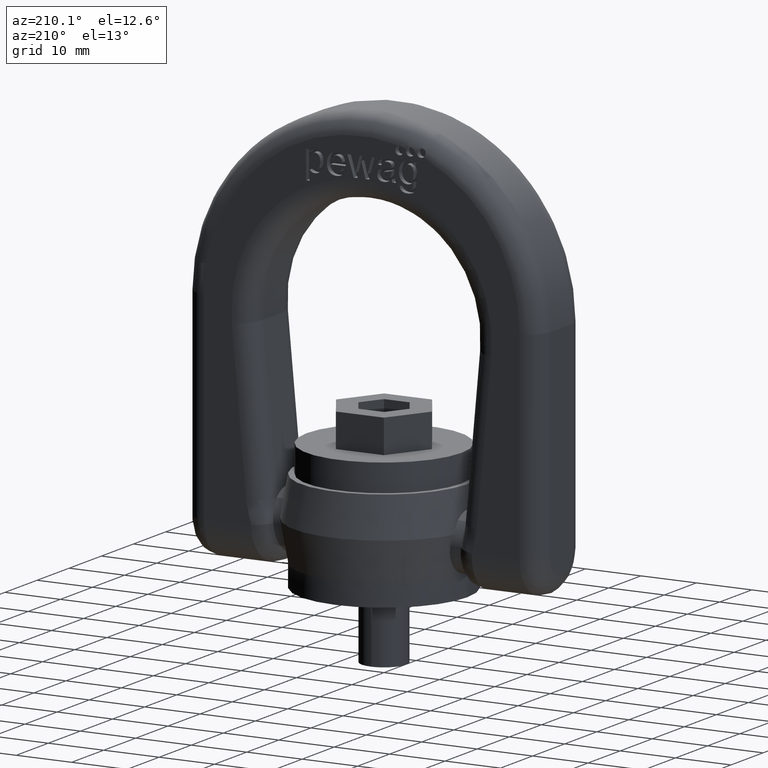
[diagram: clean part render]
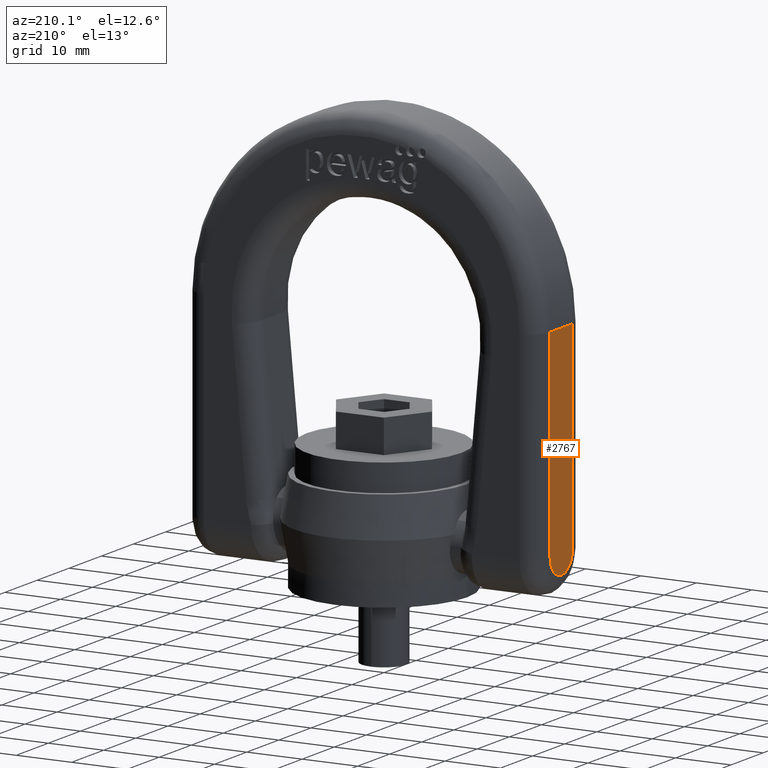
[diagram: same view with one face highlighted and labeled with its STEP entity id]
A machine part, auxiliary view. The second image highlights one B-rep face of the part: STEP entity #2767.
In plain terms, the highlighted planar face has unit normal (1, 0, -0).
Its self-contained STEP definition (entity closure, byte-faithful):
#1833=LINE('',#7069,#2115);
#1834=LINE('',#7072,#2116);
#1835=LINE('',#7076,#2117);
#2115=VECTOR('',#5990,1.);
#2116=VECTOR('',#5991,1.);
#2117=VECTOR('',#5994,1.);
#2429=FACE_OUTER_BOUND('',#3103,.T.);
#2646=PLANE('',#5661);
#2767=ADVANCED_FACE('',(#2429),#2646,.F.);
#3103=EDGE_LOOP('',(#3515,#3516,#3517,#3518));
#3515=ORIENTED_EDGE('',*,*,#5083,.T.);
#3516=ORIENTED_EDGE('',*,*,#5084,.T.);
#3517=ORIENTED_EDGE('',*,*,#5085,.T.);
#3518=ORIENTED_EDGE('',*,*,#5086,.T.);
#4667=VERTEX_POINT('',#7070);
#4668=VERTEX_POINT('',#7071);
#4669=VERTEX_POINT('',#7073);
#4670=VERTEX_POINT('',#7075);
#5083=EDGE_CURVE('',#4667,#4668,#1833,.T.);
#5084=EDGE_CURVE('',#4668,#4669,#1834,.T.);
#5085=EDGE_CURVE('',#4669,#4670,#5575,.T.);
#5086=EDGE_CURVE('',#4670,#4667,#1835,.T.);
#5575=CIRCLE('',#5660,3.49999999999996);
#5660=AXIS2_PLACEMENT_3D('',#7074,#5992,#5993);
#5661=AXIS2_PLACEMENT_3D('',#7077,#5995,#5996);
#5990=DIRECTION('',(0.,1.,0.));
#5991=DIRECTION('',(-4.83546613512699E-16,1.13290654885033E-30,-1.));
#5992=DIRECTION('',(-1.,0.,4.83546613512699E-16));
#5993=DIRECTION('',(0.,0.,-1.));
#5994=DIRECTION('',(4.83546613512699E-16,0.,1.));
#5995=DIRECTION('',(1.,0.,-4.83546613512699E-16));
#5996=DIRECTION('',(-4.85722573273506E-16,0.,-1.));
#7069=CARTESIAN_POINT('',(-32.,-7.,45.));
#7070=CARTESIAN_POINT('',(-32.,-3.5,45.));
#7071=CARTESIAN_POINT('',(-32.,3.50000000000007,45.));
#7072=CARTESIAN_POINT('',(-32.,3.50000000000007,45.));
#7073=CARTESIAN_POINT('',(-32.,3.5,8.95000000000003));
#7074=CARTESIAN_POINT('',(-32.,3.32172440595246E-14,8.95000000000003));
#7075=CARTESIAN_POINT('',(-32.,-3.5,8.95000000000003));
#7076=CARTESIAN_POINT('',(-32.,-3.5,45.));
#7077=CARTESIAN_POINT('',(-32.,-7.,45.));